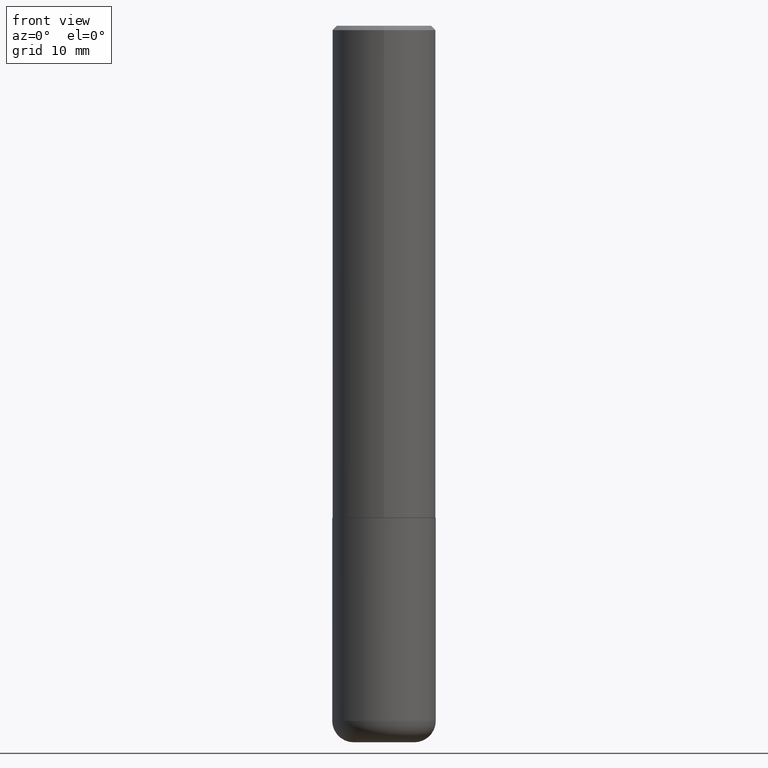
[diagram: clean part render]
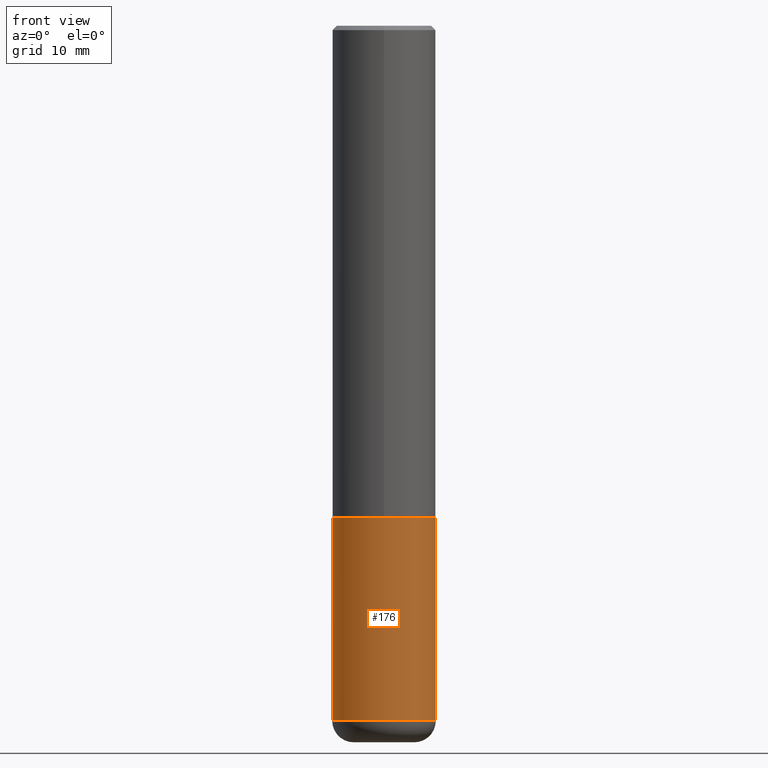
[diagram: same view with one face highlighted and labeled with its STEP entity id]
A machine part, front view. The second image highlights one B-rep face of the part: STEP entity #176.
In plain terms, the highlighted cylindrical surface (partial cylindrical patch) has radius 5.9995 mm, axis along (-0, 0, 1).
Its self-contained STEP definition (entity closure, byte-faithful):
#5 = DIRECTION ( 'NONE',  ( -2.445468806185136597E-29, 3.491481338843145583E-15, 1.000000000000000000 ) ) ;
#16 = EDGE_CURVE ( 'NONE', #120, #146, #75, .T. ) ;
#21 = CARTESIAN_POINT ( 'NONE',  ( -0.2362000000000000766, -7.772090597981385734E-15, -2.244100000000000428 ) ) ;
#28 = ORIENTED_EDGE ( 'NONE', *, *, #327, .T. ) ;
#29 = VECTOR ( 'NONE', #355, 39.37007874015748143 ) ;
#34 = DIRECTION ( 'NONE',  ( 1.000000000000000000, -6.982962677686268288E-15, 0.000000000000000000 ) ) ;
#52 = VECTOR ( 'NONE', #177, 39.37007874015748143 ) ;
#75 = LINE ( 'NONE', #185, #52 ) ;
#87 = CARTESIAN_POINT ( 'NONE',  ( -0.2362000000000000766, -9.387249865330223945E-15, -3.169299999999999784 ) ) ;
#95 = DIRECTION ( 'NONE',  ( 1.000000000000000000, -6.982962677686266711E-15, 4.876176775795936353E-29 ) ) ;
#96 = CIRCLE ( 'NONE', #166, 0.2362000000000000210 ) ;
#120 = VERTEX_POINT ( 'NONE', #87 ) ;
#128 = CARTESIAN_POINT ( 'NONE',  ( 0.000000000000000000, 0.000000000000000000, 0.000000000000000000 ) ) ;
#129 = LINE ( 'NONE', #226, #29 ) ;
#144 = CIRCLE ( 'NONE', #339, 0.2361999999999999933 ) ;
#146 = VERTEX_POINT ( 'NONE', #21 ) ;
#162 = FACE_OUTER_BOUND ( 'NONE', #338, .T. ) ;
#166 = AXIS2_PLACEMENT_3D ( 'NONE', #263, #387, #34 ) ;
#174 = VERTEX_POINT ( 'NONE', #222 ) ;
#176 = ADVANCED_FACE ( 'NONE', ( #162 ), #408, .T. ) ;
#177 = DIRECTION ( 'NONE',  ( -2.445468806185136877E-29, 3.491481338843145188E-15, 1.000000000000000000 ) ) ;
#185 = CARTESIAN_POINT ( 'NONE',  ( -0.2361999999999999933, 1.678301941865356591E-15, -1.161852468318208757E-29 ) ) ;
#187 = ORIENTED_EDGE ( 'NONE', *, *, #286, .F. ) ;
#222 = CARTESIAN_POINT ( 'NONE',  ( 0.2362000000000000766, -1.271492759166507844E-14, -3.169299999999999784 ) ) ;
#226 = CARTESIAN_POINT ( 'NONE',  ( 0.2361999999999999933, -1.649375784469496131E-15, 1.151752954443000088E-29 ) ) ;
#234 = AXIS2_PLACEMENT_3D ( 'NONE', #128, #254, #95 ) ;
#236 = ORIENTED_EDGE ( 'NONE', *, *, #305, .T. ) ;
#254 = DIRECTION ( 'NONE',  ( -2.445468806185136597E-29, 3.491481338843145583E-15, 1.000000000000000000 ) ) ;
#263 = CARTESIAN_POINT ( 'NONE',  ( 5.487876547960065873E-29, -7.835233272497903917E-15, -2.244100000000000428 ) ) ;
#268 = CARTESIAN_POINT ( 'NONE',  ( 7.750424287442554569E-29, -1.106555180719558034E-14, -3.169299999999999784 ) ) ;
#274 = VERTEX_POINT ( 'NONE', #295 ) ;
#286 = EDGE_CURVE ( 'NONE', #146, #274, #96, .T. ) ;
#295 = CARTESIAN_POINT ( 'NONE',  ( 0.2362000000000000210, -9.484609056967400443E-15, -2.244100000000000428 ) ) ;
#305 = EDGE_CURVE ( 'NONE', #174, #274, #129, .T. ) ;
#327 = EDGE_CURVE ( 'NONE', #120, #174, #144, .T. ) ;
#338 = EDGE_LOOP ( 'NONE', ( #365, #28, #236, #187 ) ) ;
#339 = AXIS2_PLACEMENT_3D ( 'NONE', #268, #5, #341 ) ;
#341 = DIRECTION ( 'NONE',  ( 1.000000000000000000, -6.982962677686265133E-15, 0.000000000000000000 ) ) ;
#355 = DIRECTION ( 'NONE',  ( -2.445468806185136877E-29, 3.491481338843145188E-15, 1.000000000000000000 ) ) ;
#365 = ORIENTED_EDGE ( 'NONE', *, *, #16, .F. ) ;
#387 = DIRECTION ( 'NONE',  ( -2.445468806185136597E-29, 3.491481338843145583E-15, 1.000000000000000000 ) ) ;
#408 = CYLINDRICAL_SURFACE ( 'NONE', #234, 0.2361999999999999933 ) ;